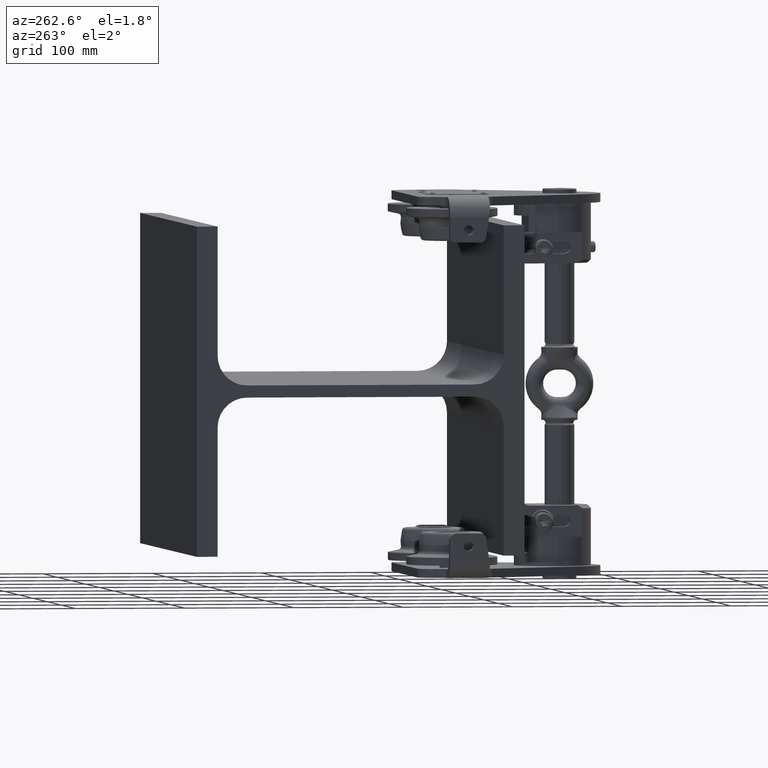
[diagram: clean part render]
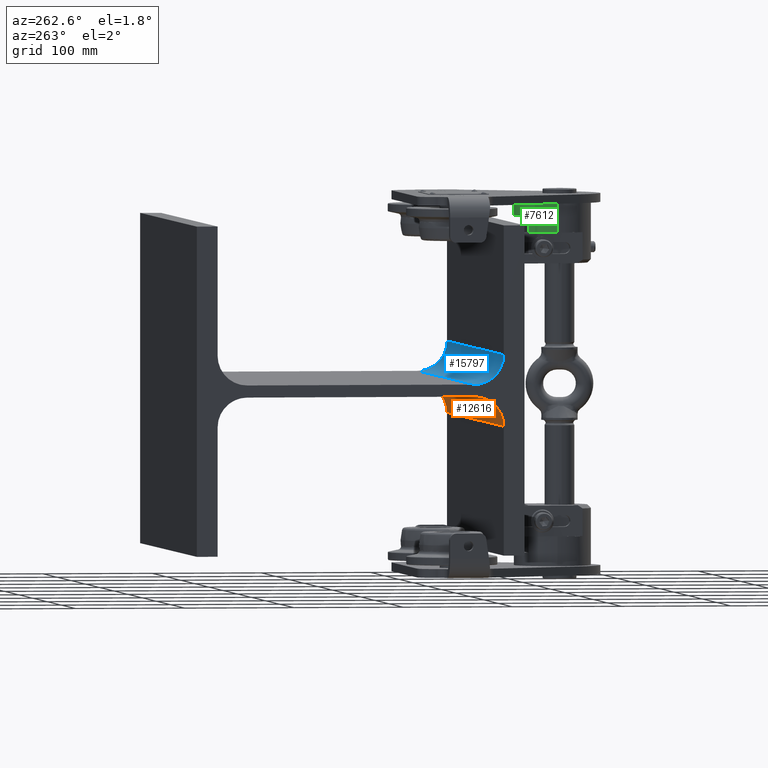
[diagram: same view with three faces highlighted in distinct colors, each labeled with its STEP entity id]
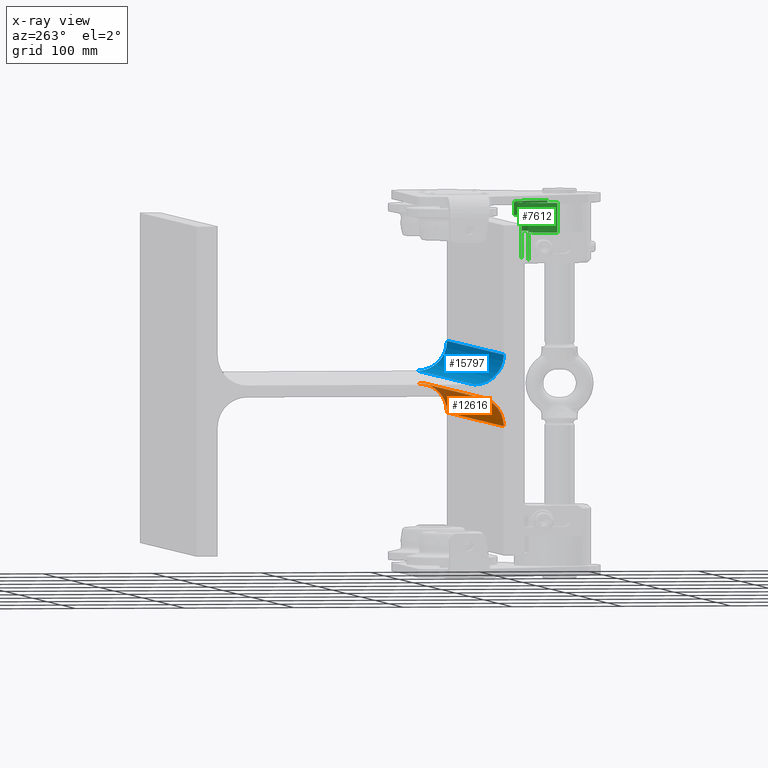
[diagram: x-ray of the same camera — body ghosted, the three highlighted faces saturated]
A machine part, auxiliary view with three faces highlighted in distinct colors.
The next image is the same camera in x-ray (body ghosted, the three faces saturated) — at least one of them is partly hidden behind the body in this view.
Their STEP definitions:

[orange] entity #12616 — the highlighted cylindrical surface (edge-blend (fillet) strip) has radius 27 mm, axis along (1, 0, 0).
#55 = VERTEX_POINT ( 'NONE', #31772 ) ;
#239 = CARTESIAN_POINT ( 'NONE',  ( -200.0000000000000000, -103.9999999999999300, -5.499999999999981300 ) ) ;
#1191 = VECTOR ( 'NONE', #19968, 1000.000000000000000 ) ;
#3441 = CARTESIAN_POINT ( 'NONE',  ( -200.0000000000000000, -103.9999999999999300, -32.49999999999997200 ) ) ;
#7572 = DIRECTION ( 'NONE',  ( -1.000000000000000000, -0.0000000000000000000, 0.0000000000000000000 ) ) ;
#10974 = CARTESIAN_POINT ( 'NONE',  ( -200.0000000000000000, -130.9999999999999100, -32.49999999999997900 ) ) ;
#11184 = EDGE_LOOP ( 'NONE', ( #12774, #37735, #14938, #27279 ) ) ;
#11254 = DIRECTION ( 'NONE',  ( 1.000000000000000000, 0.0000000000000000000, 0.0000000000000000000 ) ) ;
#12119 = LINE ( 'NONE', #43996, #1191 ) ;
#12616 = ADVANCED_FACE ( 'NONE', ( #29250 ), #26627, .F. ) ;
#12774 = ORIENTED_EDGE ( 'NONE', *, *, #37967, .F. ) ;
#14938 = ORIENTED_EDGE ( 'NONE', *, *, #45700, .T. ) ;
#15130 = DIRECTION ( 'NONE',  ( 0.0000000000000000000, 0.0000000000000000000, -1.000000000000000000 ) ) ;
#15617 = VECTOR ( 'NONE', #11254, 1000.000000000000000 ) ;
#15976 = AXIS2_PLACEMENT_3D ( 'NONE', #49488, #20107, #20644 ) ;
#16085 = CARTESIAN_POINT ( 'NONE',  ( -200.0000000000000000, -103.9999999999999300, -5.499999999999981300 ) ) ;
#16631 = CARTESIAN_POINT ( 'NONE',  ( 200.0000000000000000, -103.9999999999999300, -5.499999999999981300 ) ) ;
#17120 = AXIS2_PLACEMENT_3D ( 'NONE', #39425, #31858, #15130 ) ;
#18694 = VERTEX_POINT ( 'NONE', #16631 ) ;
#19468 = LINE ( 'NONE', #16085, #15617 ) ;
#19968 = DIRECTION ( 'NONE',  ( 1.000000000000000000, 0.0000000000000000000, 0.0000000000000000000 ) ) ;
#20107 = DIRECTION ( 'NONE',  ( -1.000000000000000000, -0.0000000000000000000, 0.0000000000000000000 ) ) ;
#20644 = DIRECTION ( 'NONE',  ( 0.0000000000000000000, 0.0000000000000000000, 1.000000000000000000 ) ) ;
#24231 = CIRCLE ( 'NONE', #15976, 26.99999999999999600 ) ;
#26627 = CYLINDRICAL_SURFACE ( 'NONE', #17120, 26.99999999999999600 ) ;
#27279 = ORIENTED_EDGE ( 'NONE', *, *, #42012, .T. ) ;
#29250 = FACE_OUTER_BOUND ( 'NONE', #11184, .T. ) ;
#31772 = CARTESIAN_POINT ( 'NONE',  ( 200.0000000000000000, -130.9999999999999100, -32.49999999999997900 ) ) ;
#31858 = DIRECTION ( 'NONE',  ( 1.000000000000000000, 0.0000000000000000000, 0.0000000000000000000 ) ) ;
#33894 = VERTEX_POINT ( 'NONE', #239 ) ;
#34312 = AXIS2_PLACEMENT_3D ( 'NONE', #3441, #7572, #36382 ) ;
#34889 = EDGE_CURVE ( 'NONE', #40424, #55, #12119, .T. ) ;
#36382 = DIRECTION ( 'NONE',  ( 0.0000000000000000000, 0.0000000000000000000, 1.000000000000000000 ) ) ;
#37735 = ORIENTED_EDGE ( 'NONE', *, *, #34889, .F. ) ;
#37967 = EDGE_CURVE ( 'NONE', #55, #18694, #24231, .T. ) ;
#39425 = CARTESIAN_POINT ( 'NONE',  ( -200.0000000000000000, -103.9999999999999300, -32.49999999999997200 ) ) ;
#40424 = VERTEX_POINT ( 'NONE', #10974 ) ;
#42012 = EDGE_CURVE ( 'NONE', #33894, #18694, #19468, .T. ) ;
#43996 = CARTESIAN_POINT ( 'NONE',  ( -200.0000000000000000, -130.9999999999999100, -32.49999999999997900 ) ) ;
#45700 = EDGE_CURVE ( 'NONE', #40424, #33894, #47401, .T. ) ;
#47401 = CIRCLE ( 'NONE', #34312, 26.99999999999999600 ) ;
#49488 = CARTESIAN_POINT ( 'NONE',  ( 200.0000000000000000, -103.9999999999999300, -32.49999999999997200 ) ) ;

[blue] entity #15797 — the highlighted cylindrical surface (edge-blend (fillet) strip) has radius 27 mm, axis along (1, 0, 0).
#6711 = AXIS2_PLACEMENT_3D ( 'NONE', #44226, #19499, #52417 ) ;
#7914 = CARTESIAN_POINT ( 'NONE',  ( -200.0000000000000000, -130.9999999999998300, 32.49999999999994300 ) ) ;
#7923 = LINE ( 'NONE', #11413, #10472 ) ;
#7973 = EDGE_LOOP ( 'NONE', ( #50292, #15630, #48523, #44668 ) ) ;
#10472 = VECTOR ( 'NONE', #52035, 1000.000000000000000 ) ;
#11413 = CARTESIAN_POINT ( 'NONE',  ( -200.0000000000000000, -103.9999999999998200, 5.499999999999984000 ) ) ;
#12830 = CARTESIAN_POINT ( 'NONE',  ( -200.0000000000000000, -130.9999999999998300, 32.49999999999994300 ) ) ;
#12834 = DIRECTION ( 'NONE',  ( 0.0000000000000000000, 0.0000000000000000000, -1.000000000000000000 ) ) ;
#15630 = ORIENTED_EDGE ( 'NONE', *, *, #33578, .F. ) ;
#15797 = ADVANCED_FACE ( 'NONE', ( #48973 ), #50235, .F. ) ;
#16792 = CARTESIAN_POINT ( 'NONE',  ( -200.0000000000000000, -103.9999999999998200, 32.49999999999995700 ) ) ;
#19499 = DIRECTION ( 'NONE',  ( 1.000000000000000000, 0.0000000000000000000, 0.0000000000000000000 ) ) ;
#20262 = CARTESIAN_POINT ( 'NONE',  ( 200.0000000000000000, -103.9999999999998200, 5.499999999999984000 ) ) ;
#20417 = AXIS2_PLACEMENT_3D ( 'NONE', #50919, #42695, #38700 ) ;
#23993 = VERTEX_POINT ( 'NONE', #27091 ) ;
#26840 = LINE ( 'NONE', #7914, #31364 ) ;
#27091 = CARTESIAN_POINT ( 'NONE',  ( 200.0000000000000000, -130.9999999999998300, 32.49999999999994300 ) ) ;
#27361 = VERTEX_POINT ( 'NONE', #28602 ) ;
#28602 = CARTESIAN_POINT ( 'NONE',  ( -200.0000000000000000, -103.9999999999998200, 5.499999999999984000 ) ) ;
#28874 = DIRECTION ( 'NONE',  ( 1.000000000000000000, 0.0000000000000000000, 0.0000000000000000000 ) ) ;
#29378 = AXIS2_PLACEMENT_3D ( 'NONE', #16792, #28874, #12834 ) ;
#31364 = VECTOR ( 'NONE', #32359, 1000.000000000000000 ) ;
#32108 = EDGE_CURVE ( 'NONE', #42814, #27361, #41641, .T. ) ;
#32359 = DIRECTION ( 'NONE',  ( 1.000000000000000000, 0.0000000000000000000, 0.0000000000000000000 ) ) ;
#32369 = CIRCLE ( 'NONE', #6711, 26.99999999999997500 ) ;
#33578 = EDGE_CURVE ( 'NONE', #27361, #44717, #7923, .T. ) ;
#35187 = EDGE_CURVE ( 'NONE', #42814, #23993, #26840, .T. ) ;
#38700 = DIRECTION ( 'NONE',  ( 0.0000000000000000000, 0.0000000000000000000, -1.000000000000000000 ) ) ;
#41641 = CIRCLE ( 'NONE', #29378, 26.99999999999997500 ) ;
#42063 = EDGE_CURVE ( 'NONE', #23993, #44717, #32369, .T. ) ;
#42695 = DIRECTION ( 'NONE',  ( 1.000000000000000000, 0.0000000000000000000, 0.0000000000000000000 ) ) ;
#42814 = VERTEX_POINT ( 'NONE', #12830 ) ;
#44226 = CARTESIAN_POINT ( 'NONE',  ( 200.0000000000000000, -103.9999999999998200, 32.49999999999995700 ) ) ;
#44668 = ORIENTED_EDGE ( 'NONE', *, *, #35187, .T. ) ;
#44717 = VERTEX_POINT ( 'NONE', #20262 ) ;
#48523 = ORIENTED_EDGE ( 'NONE', *, *, #32108, .F. ) ;
#48973 = FACE_OUTER_BOUND ( 'NONE', #7973, .T. ) ;
#50235 = CYLINDRICAL_SURFACE ( 'NONE', #20417, 26.99999999999997500 ) ;
#50292 = ORIENTED_EDGE ( 'NONE', *, *, #42063, .T. ) ;
#50919 = CARTESIAN_POINT ( 'NONE',  ( -200.0000000000000000, -103.9999999999998200, 32.49999999999995700 ) ) ;
#52035 = DIRECTION ( 'NONE',  ( 1.000000000000000000, 0.0000000000000000000, 0.0000000000000000000 ) ) ;
#52417 = DIRECTION ( 'NONE',  ( 0.0000000000000000000, 0.0000000000000000000, -1.000000000000000000 ) ) ;

[green] entity #7612 — the highlighted cylindrical surface (partial cylindrical patch) has radius 35 mm, axis along (0, 0, 1).
#31 = CIRCLE ( 'NONE', #29169, 34.99999999999999300 ) ;
#292 = VECTOR ( 'NONE', #21529, 1000.000000000000000 ) ;
#912 = FACE_OUTER_BOUND ( 'NONE', #11862, .T. ) ;
#1380 = VERTEX_POINT ( 'NONE', #28690 ) ;
#1748 = VECTOR ( 'NONE', #29076, 1000.000000000000000 ) ;
#1833 = CIRCLE ( 'NONE', #7301, 34.99999999999999300 ) ;
#1846 = LINE ( 'NONE', #52240, #49496 ) ;
#2027 = CARTESIAN_POINT ( 'NONE',  ( -24.99999999999999300, -177.0051025721681100, 112.9999999999998700 ) ) ;
#2585 = ORIENTED_EDGE ( 'NONE', *, *, #48478, .F. ) ;
#2876 = CARTESIAN_POINT ( 'NONE',  ( 6.919463636619704200E-015, -201.4999999999998900, 137.9999999999998900 ) ) ;
#3117 = CARTESIAN_POINT ( 'NONE',  ( 6.919463636619704200E-015, -201.4999999999998900, 152.9999999999999100 ) ) ;
#3206 = CARTESIAN_POINT ( 'NONE',  ( 6.919463636619704200E-015, -201.4999999999998900, 164.9999999999998900 ) ) ;
#4724 = EDGE_CURVE ( 'NONE', #45269, #49965, #31, .T. ) ;
#5771 = VECTOR ( 'NONE', #52082, 1000.000000000000000 ) ;
#6126 = EDGE_CURVE ( 'NONE', #1380, #47896, #12674, .T. ) ;
#7301 = AXIS2_PLACEMENT_3D ( 'NONE', #42967, #22407, #34167 ) ;
#7326 = DIRECTION ( 'NONE',  ( 0.0000000000000000000, 0.0000000000000000000, 1.000000000000000000 ) ) ;
#7454 = AXIS2_PLACEMENT_3D ( 'NONE', #16273, #40619, #48908 ) ;
#7545 = EDGE_CURVE ( 'NONE', #9306, #32357, #14410, .T. ) ;
#7612 = ADVANCED_FACE ( 'NONE', ( #912 ), #32692, .T. ) ;
#8564 = ORIENTED_EDGE ( 'NONE', *, *, #46730, .T. ) ;
#9156 = CARTESIAN_POINT ( 'NONE',  ( 25.00000000000000700, -177.0051025721681100, 109.9999999999999000 ) ) ;
#9220 = CARTESIAN_POINT ( 'NONE',  ( -34.99999999999999300, -201.4999999999998900, 164.9999999999998900 ) ) ;
#9306 = VERTEX_POINT ( 'NONE', #47412 ) ;
#10327 = EDGE_CURVE ( 'NONE', #11933, #19409, #1833, .T. ) ;
#11417 = CARTESIAN_POINT ( 'NONE',  ( 6.919463636619704200E-015, -201.4999999999998900, 112.9999999999998700 ) ) ;
#11862 = EDGE_LOOP ( 'NONE', ( #15607, #32541, #52372, #2585, #15229, #46453, #8564, #20119, #16065, #40287, #25663, #16439 ) ) ;
#11933 = VERTEX_POINT ( 'NONE', #15751 ) ;
#12674 = LINE ( 'NONE', #28913, #1748 ) ;
#12801 = CARTESIAN_POINT ( 'NONE',  ( 35.00000000000000000, -201.4999999999998900, 137.9999999999998900 ) ) ;
#13068 = VERTEX_POINT ( 'NONE', #13103 ) ;
#13103 = CARTESIAN_POINT ( 'NONE',  ( -24.99999999999999300, -177.0051025721681100, 137.9999999999998900 ) ) ;
#14410 = CIRCLE ( 'NONE', #17723, 34.99999999999999300 ) ;
#15229 = ORIENTED_EDGE ( 'NONE', *, *, #4724, .T. ) ;
#15607 = ORIENTED_EDGE ( 'NONE', *, *, #25428, .T. ) ;
#15751 = CARTESIAN_POINT ( 'NONE',  ( -24.49489742783176600, -176.4999999999998900, 112.9999999999998700 ) ) ;
#16065 = ORIENTED_EDGE ( 'NONE', *, *, #30986, .F. ) ;
#16273 = CARTESIAN_POINT ( 'NONE',  ( 6.919463636619704200E-015, -201.4999999999998900, 109.9999999999999000 ) ) ;
#16439 = ORIENTED_EDGE ( 'NONE', *, *, #45153, .T. ) ;
#17723 = AXIS2_PLACEMENT_3D ( 'NONE', #3206, #7326, #36152 ) ;
#17915 = VERTEX_POINT ( 'NONE', #20152 ) ;
#18968 = DIRECTION ( 'NONE',  ( 0.0000000000000000000, 0.0000000000000000000, 1.000000000000000000 ) ) ;
#19358 = DIRECTION ( 'NONE',  ( -0.0000000000000000000, -0.0000000000000000000, 1.000000000000000000 ) ) ;
#19409 = VERTEX_POINT ( 'NONE', #2027 ) ;
#20004 = CIRCLE ( 'NONE', #25719, 34.99999999999999300 ) ;
#20119 = ORIENTED_EDGE ( 'NONE', *, *, #6126, .F. ) ;
#20152 = CARTESIAN_POINT ( 'NONE',  ( -34.99999999999999300, -201.4999999999998900, 137.9999999999998900 ) ) ;
#21529 = DIRECTION ( 'NONE',  ( -0.0000000000000000000, -0.0000000000000000000, -1.000000000000000000 ) ) ;
#22345 = DIRECTION ( 'NONE',  ( 3.469446951953616700E-016, 0.0000000000000000000, 1.000000000000000000 ) ) ;
#22407 = DIRECTION ( 'NONE',  ( -0.0000000000000000000, -0.0000000000000000000, 1.000000000000000000 ) ) ;
#22720 = CARTESIAN_POINT ( 'NONE',  ( -24.49489742783176600, -176.4999999999998900, 152.9999999999998900 ) ) ;
#22961 = CIRCLE ( 'NONE', #40020, 35.00000000000000000 ) ;
#23364 = DIRECTION ( 'NONE',  ( -1.000000000000000000, 4.758098676964957800E-015, 0.0000000000000000000 ) ) ;
#23655 = DIRECTION ( 'NONE',  ( -0.0000000000000000000, -0.0000000000000000000, 1.000000000000000000 ) ) ;
#24334 = VECTOR ( 'NONE', #34779, 1000.000000000000000 ) ;
#25076 = LINE ( 'NONE', #39535, #5771 ) ;
#25307 = EDGE_CURVE ( 'NONE', #11933, #47747, #1846, .T. ) ;
#25428 = EDGE_CURVE ( 'NONE', #13068, #17915, #53306, .T. ) ;
#25663 = ORIENTED_EDGE ( 'NONE', *, *, #10327, .T. ) ;
#25719 = AXIS2_PLACEMENT_3D ( 'NONE', #11417, #23655, #40390 ) ;
#28690 = CARTESIAN_POINT ( 'NONE',  ( 24.49489742783177700, -176.4999999999998900, 152.9999999999998900 ) ) ;
#28857 = VECTOR ( 'NONE', #36623, 1000.000000000000000 ) ;
#28913 = CARTESIAN_POINT ( 'NONE',  ( 24.49489742783177700, -176.4999999999998900, 109.9999999999999000 ) ) ;
#29076 = DIRECTION ( 'NONE',  ( -0.0000000000000000000, -0.0000000000000000000, -1.000000000000000000 ) ) ;
#29169 = AXIS2_PLACEMENT_3D ( 'NONE', #38947, #22345, #31008 ) ;
#30986 = EDGE_CURVE ( 'NONE', #47747, #1380, #22961, .T. ) ;
#31008 = DIRECTION ( 'NONE',  ( -1.000000000000000000, 1.586032892321652500E-015, 0.0000000000000000000 ) ) ;
#31051 = EDGE_CURVE ( 'NONE', #17915, #32357, #39154, .T. ) ;
#31891 = DIRECTION ( 'NONE',  ( -0.0000000000000000000, -8.673617379884039400E-016, -1.000000000000000000 ) ) ;
#32357 = VERTEX_POINT ( 'NONE', #9220 ) ;
#32541 = ORIENTED_EDGE ( 'NONE', *, *, #31051, .T. ) ;
#32692 = CYLINDRICAL_SURFACE ( 'NONE', #7454, 34.99999999999999300 ) ;
#34167 = DIRECTION ( 'NONE',  ( 1.000000000000000000, 0.0000000000000000000, 0.0000000000000000000 ) ) ;
#34779 = DIRECTION ( 'NONE',  ( 0.0000000000000000000, 0.0000000000000000000, 1.000000000000000000 ) ) ;
#36072 = DIRECTION ( 'NONE',  ( 0.0000000000000000000, -1.000000000000000000, 7.930164461608261400E-016 ) ) ;
#36152 = DIRECTION ( 'NONE',  ( 1.000000000000000000, 0.0000000000000000000, 0.0000000000000000000 ) ) ;
#36271 = CARTESIAN_POINT ( 'NONE',  ( -24.99999999999999300, -177.0051025721681100, 109.9999999999999000 ) ) ;
#36559 = CARTESIAN_POINT ( 'NONE',  ( 25.00000000000000700, -177.0051025721681100, 112.9999999999998700 ) ) ;
#36623 = DIRECTION ( 'NONE',  ( 0.0000000000000000000, 0.0000000000000000000, 1.000000000000000000 ) ) ;
#38290 = LINE ( 'NONE', #9156, #292 ) ;
#38947 = CARTESIAN_POINT ( 'NONE',  ( 6.919463636619704200E-015, -201.4999999999998900, 137.9999999999998900 ) ) ;
#39154 = LINE ( 'NONE', #47586, #24334 ) ;
#39535 = CARTESIAN_POINT ( 'NONE',  ( 35.00000000000000000, -201.4999999999998900, 109.9999999999999000 ) ) ;
#40020 = AXIS2_PLACEMENT_3D ( 'NONE', #3117, #31891, #36072 ) ;
#40287 = ORIENTED_EDGE ( 'NONE', *, *, #25307, .F. ) ;
#40390 = DIRECTION ( 'NONE',  ( 1.000000000000000000, 0.0000000000000000000, 0.0000000000000000000 ) ) ;
#40619 = DIRECTION ( 'NONE',  ( 0.0000000000000000000, 0.0000000000000000000, 1.000000000000000000 ) ) ;
#42967 = CARTESIAN_POINT ( 'NONE',  ( 6.919463636619704200E-015, -201.4999999999998900, 112.9999999999998700 ) ) ;
#44730 = CARTESIAN_POINT ( 'NONE',  ( 25.00000000000000700, -177.0051025721681100, 137.9999999999998900 ) ) ;
#45153 = EDGE_CURVE ( 'NONE', #19409, #13068, #50722, .T. ) ;
#45269 = VERTEX_POINT ( 'NONE', #12801 ) ;
#45908 = EDGE_CURVE ( 'NONE', #49965, #50472, #38290, .T. ) ;
#46453 = ORIENTED_EDGE ( 'NONE', *, *, #45908, .T. ) ;
#46730 = EDGE_CURVE ( 'NONE', #50472, #47896, #20004, .T. ) ;
#47412 = CARTESIAN_POINT ( 'NONE',  ( 35.00000000000000000, -201.4999999999998900, 164.9999999999998900 ) ) ;
#47586 = CARTESIAN_POINT ( 'NONE',  ( -34.99999999999999300, -201.4999999999998900, 109.9999999999999000 ) ) ;
#47747 = VERTEX_POINT ( 'NONE', #22720 ) ;
#47896 = VERTEX_POINT ( 'NONE', #51806 ) ;
#48478 = EDGE_CURVE ( 'NONE', #45269, #9306, #25076, .T. ) ;
#48908 = DIRECTION ( 'NONE',  ( 1.000000000000000000, 0.0000000000000000000, 0.0000000000000000000 ) ) ;
#49496 = VECTOR ( 'NONE', #18968, 1000.000000000000000 ) ;
#49945 = AXIS2_PLACEMENT_3D ( 'NONE', #2876, #19358, #23364 ) ;
#49965 = VERTEX_POINT ( 'NONE', #44730 ) ;
#50472 = VERTEX_POINT ( 'NONE', #36559 ) ;
#50722 = LINE ( 'NONE', #36271, #28857 ) ;
#51806 = CARTESIAN_POINT ( 'NONE',  ( 24.49489742783177700, -176.4999999999998900, 112.9999999999998700 ) ) ;
#52082 = DIRECTION ( 'NONE',  ( 0.0000000000000000000, 0.0000000000000000000, 1.000000000000000000 ) ) ;
#52240 = CARTESIAN_POINT ( 'NONE',  ( -24.49489742783176600, -176.4999999999998900, 109.9999999999999000 ) ) ;
#52372 = ORIENTED_EDGE ( 'NONE', *, *, #7545, .F. ) ;
#53306 = CIRCLE ( 'NONE', #49945, 34.99999999999999300 ) ;